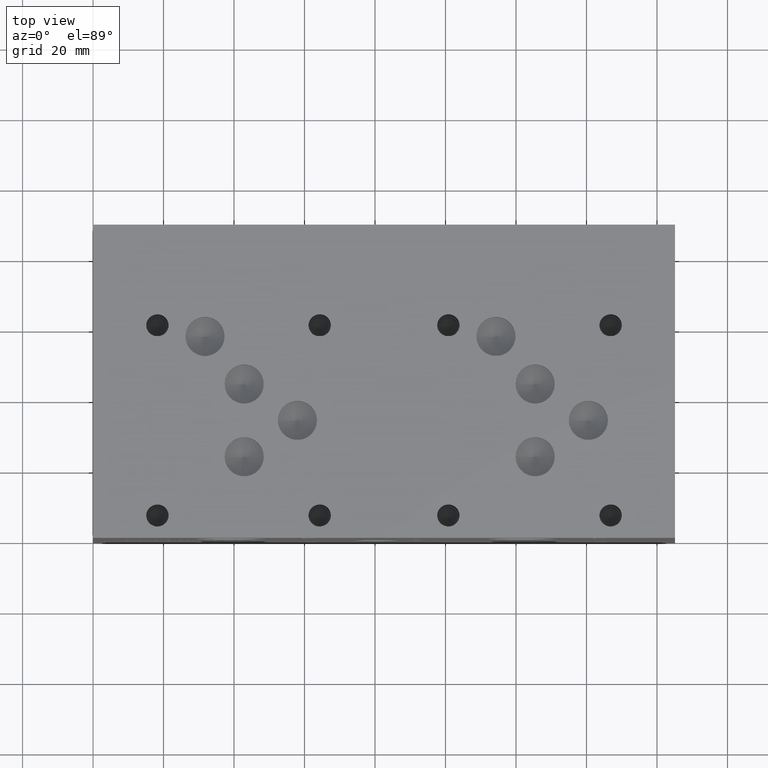
[diagram: clean part render]
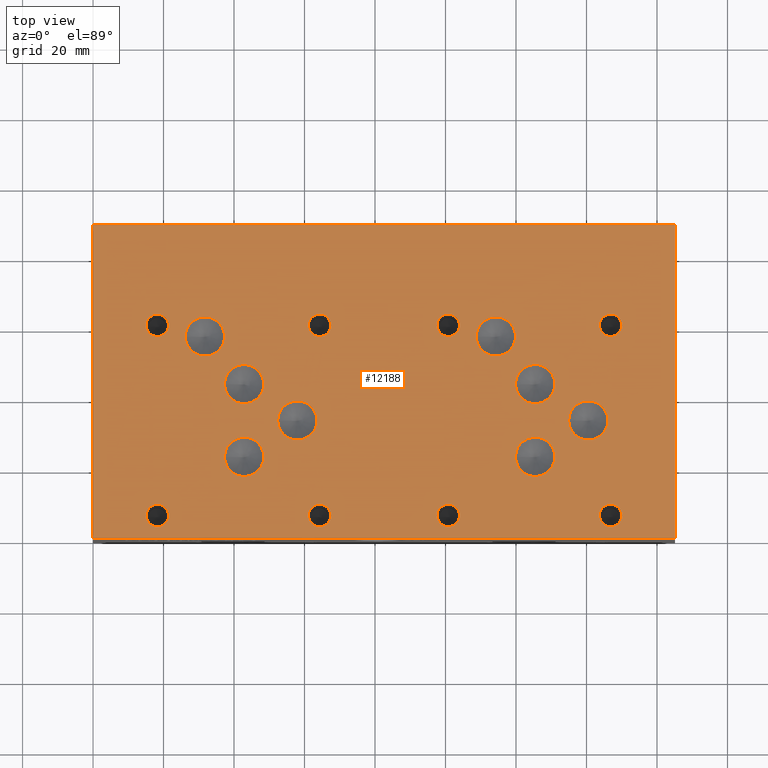
[diagram: same view with one face highlighted and labeled with its STEP entity id]
A machine part, top view. The second image highlights one B-rep face of the part: STEP entity #12188.
In plain terms, the highlighted planar face has unit normal (0, 0, 1).
Its self-contained STEP definition (entity closure, byte-faithful):
#223=CIRCLE('',#12721,5.55625);
#224=CIRCLE('',#12722,5.55625);
#227=CIRCLE('',#12727,5.5626);
#228=CIRCLE('',#12728,5.5626);
#231=CIRCLE('',#12733,5.5626);
#232=CIRCLE('',#12734,5.5626);
#235=CIRCLE('',#12739,5.5626);
#236=CIRCLE('',#12740,5.5626);
#239=CIRCLE('',#12745,5.5626);
#240=CIRCLE('',#12746,5.5626);
#243=CIRCLE('',#12751,5.5626);
#244=CIRCLE('',#12752,5.5626);
#247=CIRCLE('',#12757,5.5626);
#248=CIRCLE('',#12758,5.5626);
#251=CIRCLE('',#12763,5.5626);
#252=CIRCLE('',#12764,5.5626);
#258=CIRCLE('',#12773,3.175);
#259=CIRCLE('',#12774,3.175);
#265=CIRCLE('',#12784,3.175);
#266=CIRCLE('',#12785,3.175);
#272=CIRCLE('',#12795,3.175);
#273=CIRCLE('',#12796,3.175);
#279=CIRCLE('',#12806,3.175);
#280=CIRCLE('',#12807,3.175);
#286=CIRCLE('',#12817,3.175);
#287=CIRCLE('',#12818,3.175);
#293=CIRCLE('',#12828,3.175);
#294=CIRCLE('',#12829,3.175);
#300=CIRCLE('',#12839,3.175);
#301=CIRCLE('',#12840,3.175);
#307=CIRCLE('',#12850,3.175);
#308=CIRCLE('',#12851,3.175);
#393=FACE_BOUND('',#2257,.T.);
#394=FACE_BOUND('',#2258,.T.);
#395=FACE_BOUND('',#2259,.T.);
#396=FACE_BOUND('',#2260,.T.);
#397=FACE_BOUND('',#2261,.T.);
#398=FACE_BOUND('',#2262,.T.);
#399=FACE_BOUND('',#2263,.T.);
#400=FACE_BOUND('',#2264,.T.);
#401=FACE_BOUND('',#2265,.T.);
#402=FACE_BOUND('',#2266,.T.);
#403=FACE_BOUND('',#2267,.T.);
#404=FACE_BOUND('',#2268,.T.);
#405=FACE_BOUND('',#2269,.T.);
#406=FACE_BOUND('',#2270,.T.);
#407=FACE_BOUND('',#2271,.T.);
#408=FACE_BOUND('',#2272,.T.);
#1549=FACE_OUTER_BOUND('',#2256,.T.);
#2256=EDGE_LOOP('',(#10679,#10680,#10681,#10682));
#2257=EDGE_LOOP('',(#10683,#10684));
#2258=EDGE_LOOP('',(#10685,#10686));
#2259=EDGE_LOOP('',(#10687,#10688));
#2260=EDGE_LOOP('',(#10689,#10690));
#2261=EDGE_LOOP('',(#10691,#10692));
#2262=EDGE_LOOP('',(#10693,#10694));
#2263=EDGE_LOOP('',(#10695,#10696));
#2264=EDGE_LOOP('',(#10697,#10698));
#2265=EDGE_LOOP('',(#10699,#10700));
#2266=EDGE_LOOP('',(#10701,#10702));
#2267=EDGE_LOOP('',(#10703,#10704));
#2268=EDGE_LOOP('',(#10705,#10706));
#2269=EDGE_LOOP('',(#10707,#10708));
#2270=EDGE_LOOP('',(#10709,#10710));
#2271=EDGE_LOOP('',(#10711,#10712));
#2272=EDGE_LOOP('',(#10713,#10714));
#2590=LINE('',#17764,#3717);
#3159=LINE('',#19725,#4286);
#3219=LINE('',#19998,#4346);
#3400=LINE('',#21001,#4527);
#3717=VECTOR('',#13339,10.);
#4286=VECTOR('',#14320,10.);
#4346=VECTOR('',#14434,10.);
#4527=VECTOR('',#15289,10.);
#4882=VERTEX_POINT('',#17761);
#4883=VERTEX_POINT('',#17763);
#5341=VERTEX_POINT('',#19724);
#5399=VERTEX_POINT('',#19996);
#5584=VERTEX_POINT('',#20726);
#5585=VERTEX_POINT('',#20727);
#5589=VERTEX_POINT('',#20739);
#5590=VERTEX_POINT('',#20740);
#5594=VERTEX_POINT('',#20752);
#5595=VERTEX_POINT('',#20753);
#5599=VERTEX_POINT('',#20765);
#5600=VERTEX_POINT('',#20766);
#5604=VERTEX_POINT('',#20778);
#5605=VERTEX_POINT('',#20779);
#5609=VERTEX_POINT('',#20791);
#5610=VERTEX_POINT('',#20792);
#5614=VERTEX_POINT('',#20804);
#5615=VERTEX_POINT('',#20805);
#5619=VERTEX_POINT('',#20817);
#5620=VERTEX_POINT('',#20818);
#5627=VERTEX_POINT('',#20837);
#5628=VERTEX_POINT('',#20838);
#5635=VERTEX_POINT('',#20859);
#5636=VERTEX_POINT('',#20860);
#5643=VERTEX_POINT('',#20881);
#5644=VERTEX_POINT('',#20882);
#5651=VERTEX_POINT('',#20903);
#5652=VERTEX_POINT('',#20904);
#5659=VERTEX_POINT('',#20925);
#5660=VERTEX_POINT('',#20926);
#5667=VERTEX_POINT('',#20947);
#5668=VERTEX_POINT('',#20948);
#5675=VERTEX_POINT('',#20969);
#5676=VERTEX_POINT('',#20970);
#5683=VERTEX_POINT('',#20991);
#5684=VERTEX_POINT('',#20992);
#6215=EDGE_CURVE('',#4883,#4882,#2590,.T.);
#6888=EDGE_CURVE('',#5341,#4883,#3159,.T.);
#6972=EDGE_CURVE('',#4882,#5399,#3219,.T.);
#7236=EDGE_CURVE('',#5584,#5585,#223,.T.);
#7237=EDGE_CURVE('',#5585,#5584,#224,.T.);
#7242=EDGE_CURVE('',#5589,#5590,#227,.T.);
#7243=EDGE_CURVE('',#5590,#5589,#228,.T.);
#7248=EDGE_CURVE('',#5594,#5595,#231,.T.);
#7249=EDGE_CURVE('',#5595,#5594,#232,.T.);
#7254=EDGE_CURVE('',#5599,#5600,#235,.T.);
#7255=EDGE_CURVE('',#5600,#5599,#236,.T.);
#7260=EDGE_CURVE('',#5604,#5605,#239,.T.);
#7261=EDGE_CURVE('',#5605,#5604,#240,.T.);
#7266=EDGE_CURVE('',#5609,#5610,#243,.T.);
#7267=EDGE_CURVE('',#5610,#5609,#244,.T.);
#7272=EDGE_CURVE('',#5614,#5615,#247,.T.);
#7273=EDGE_CURVE('',#5615,#5614,#248,.T.);
#7278=EDGE_CURVE('',#5619,#5620,#251,.T.);
#7279=EDGE_CURVE('',#5620,#5619,#252,.T.);
#7287=EDGE_CURVE('',#5627,#5628,#258,.T.);
#7288=EDGE_CURVE('',#5628,#5627,#259,.T.);
#7297=EDGE_CURVE('',#5635,#5636,#265,.T.);
#7298=EDGE_CURVE('',#5636,#5635,#266,.T.);
#7307=EDGE_CURVE('',#5643,#5644,#272,.T.);
#7308=EDGE_CURVE('',#5644,#5643,#273,.T.);
#7317=EDGE_CURVE('',#5651,#5652,#279,.T.);
#7318=EDGE_CURVE('',#5652,#5651,#280,.T.);
#7327=EDGE_CURVE('',#5659,#5660,#286,.T.);
#7328=EDGE_CURVE('',#5660,#5659,#287,.T.);
#7337=EDGE_CURVE('',#5667,#5668,#293,.T.);
#7338=EDGE_CURVE('',#5668,#5667,#294,.T.);
#7347=EDGE_CURVE('',#5675,#5676,#300,.T.);
#7348=EDGE_CURVE('',#5676,#5675,#301,.T.);
#7357=EDGE_CURVE('',#5683,#5684,#307,.T.);
#7358=EDGE_CURVE('',#5684,#5683,#308,.T.);
#7362=EDGE_CURVE('',#5399,#5341,#3400,.T.);
#10679=ORIENTED_EDGE('',*,*,#6215,.T.);
#10680=ORIENTED_EDGE('',*,*,#6972,.T.);
#10681=ORIENTED_EDGE('',*,*,#7362,.T.);
#10682=ORIENTED_EDGE('',*,*,#6888,.T.);
#10683=ORIENTED_EDGE('',*,*,#7236,.T.);
#10684=ORIENTED_EDGE('',*,*,#7237,.T.);
#10685=ORIENTED_EDGE('',*,*,#7242,.T.);
#10686=ORIENTED_EDGE('',*,*,#7243,.T.);
#10687=ORIENTED_EDGE('',*,*,#7248,.T.);
#10688=ORIENTED_EDGE('',*,*,#7249,.T.);
#10689=ORIENTED_EDGE('',*,*,#7254,.T.);
#10690=ORIENTED_EDGE('',*,*,#7255,.T.);
#10691=ORIENTED_EDGE('',*,*,#7260,.T.);
#10692=ORIENTED_EDGE('',*,*,#7261,.T.);
#10693=ORIENTED_EDGE('',*,*,#7266,.T.);
#10694=ORIENTED_EDGE('',*,*,#7267,.T.);
#10695=ORIENTED_EDGE('',*,*,#7272,.T.);
#10696=ORIENTED_EDGE('',*,*,#7273,.T.);
#10697=ORIENTED_EDGE('',*,*,#7278,.T.);
#10698=ORIENTED_EDGE('',*,*,#7279,.T.);
#10699=ORIENTED_EDGE('',*,*,#7287,.T.);
#10700=ORIENTED_EDGE('',*,*,#7288,.T.);
#10701=ORIENTED_EDGE('',*,*,#7297,.T.);
#10702=ORIENTED_EDGE('',*,*,#7298,.T.);
#10703=ORIENTED_EDGE('',*,*,#7307,.T.);
#10704=ORIENTED_EDGE('',*,*,#7308,.T.);
#10705=ORIENTED_EDGE('',*,*,#7317,.T.);
#10706=ORIENTED_EDGE('',*,*,#7318,.T.);
#10707=ORIENTED_EDGE('',*,*,#7327,.T.);
#10708=ORIENTED_EDGE('',*,*,#7328,.T.);
#10709=ORIENTED_EDGE('',*,*,#7337,.T.);
#10710=ORIENTED_EDGE('',*,*,#7338,.T.);
#10711=ORIENTED_EDGE('',*,*,#7347,.T.);
#10712=ORIENTED_EDGE('',*,*,#7348,.T.);
#10713=ORIENTED_EDGE('',*,*,#7357,.T.);
#10714=ORIENTED_EDGE('',*,*,#7358,.T.);
#11077=PLANE('',#12857);
#12188=ADVANCED_FACE('',(#1549,#393,#394,#395,#396,#397,#398,#399,#400,
#401,#402,#403,#404,#405,#406,#407,#408),#11077,.T.);
#12721=AXIS2_PLACEMENT_3D('',#20728,#14981,#14982);
#12722=AXIS2_PLACEMENT_3D('',#20729,#14983,#14984);
#12727=AXIS2_PLACEMENT_3D('',#20741,#14995,#14996);
#12728=AXIS2_PLACEMENT_3D('',#20742,#14997,#14998);
#12733=AXIS2_PLACEMENT_3D('',#20754,#15009,#15010);
#12734=AXIS2_PLACEMENT_3D('',#20755,#15011,#15012);
#12739=AXIS2_PLACEMENT_3D('',#20767,#15023,#15024);
#12740=AXIS2_PLACEMENT_3D('',#20768,#15025,#15026);
#12745=AXIS2_PLACEMENT_3D('',#20780,#15037,#15038);
#12746=AXIS2_PLACEMENT_3D('',#20781,#15039,#15040);
#12751=AXIS2_PLACEMENT_3D('',#20793,#15051,#15052);
#12752=AXIS2_PLACEMENT_3D('',#20794,#15053,#15054);
#12757=AXIS2_PLACEMENT_3D('',#20806,#15065,#15066);
#12758=AXIS2_PLACEMENT_3D('',#20807,#15067,#15068);
#12763=AXIS2_PLACEMENT_3D('',#20819,#15079,#15080);
#12764=AXIS2_PLACEMENT_3D('',#20820,#15081,#15082);
#12773=AXIS2_PLACEMENT_3D('',#20839,#15101,#15102);
#12774=AXIS2_PLACEMENT_3D('',#20840,#15103,#15104);
#12784=AXIS2_PLACEMENT_3D('',#20861,#15126,#15127);
#12785=AXIS2_PLACEMENT_3D('',#20862,#15128,#15129);
#12795=AXIS2_PLACEMENT_3D('',#20883,#15151,#15152);
#12796=AXIS2_PLACEMENT_3D('',#20884,#15153,#15154);
#12806=AXIS2_PLACEMENT_3D('',#20905,#15176,#15177);
#12807=AXIS2_PLACEMENT_3D('',#20906,#15178,#15179);
#12817=AXIS2_PLACEMENT_3D('',#20927,#15201,#15202);
#12818=AXIS2_PLACEMENT_3D('',#20928,#15203,#15204);
#12828=AXIS2_PLACEMENT_3D('',#20949,#15226,#15227);
#12829=AXIS2_PLACEMENT_3D('',#20950,#15228,#15229);
#12839=AXIS2_PLACEMENT_3D('',#20971,#15251,#15252);
#12840=AXIS2_PLACEMENT_3D('',#20972,#15253,#15254);
#12850=AXIS2_PLACEMENT_3D('',#20993,#15276,#15277);
#12851=AXIS2_PLACEMENT_3D('',#20994,#15278,#15279);
#12857=AXIS2_PLACEMENT_3D('',#21004,#15294,#15295);
#13339=DIRECTION('',(1.,0.,0.));
#14320=DIRECTION('',(0.,-1.,0.));
#14434=DIRECTION('',(0.,1.,0.));
#14981=DIRECTION('center_axis',(0.,0.,-1.));
#14982=DIRECTION('ref_axis',(1.,0.,0.));
#14983=DIRECTION('center_axis',(0.,0.,-1.));
#14984=DIRECTION('ref_axis',(1.,0.,0.));
#14995=DIRECTION('center_axis',(0.,0.,-1.));
#14996=DIRECTION('ref_axis',(1.,0.,0.));
#14997=DIRECTION('center_axis',(0.,0.,-1.));
#14998=DIRECTION('ref_axis',(1.,0.,0.));
#15009=DIRECTION('center_axis',(0.,0.,-1.));
#15010=DIRECTION('ref_axis',(1.,0.,0.));
#15011=DIRECTION('center_axis',(0.,0.,-1.));
#15012=DIRECTION('ref_axis',(1.,0.,0.));
#15023=DIRECTION('center_axis',(0.,0.,-1.));
#15024=DIRECTION('ref_axis',(1.,0.,0.));
#15025=DIRECTION('center_axis',(0.,0.,-1.));
#15026=DIRECTION('ref_axis',(1.,0.,0.));
#15037=DIRECTION('center_axis',(0.,0.,-1.));
#15038=DIRECTION('ref_axis',(1.,0.,0.));
#15039=DIRECTION('center_axis',(0.,0.,-1.));
#15040=DIRECTION('ref_axis',(1.,0.,0.));
#15051=DIRECTION('center_axis',(0.,0.,-1.));
#15052=DIRECTION('ref_axis',(1.,0.,0.));
#15053=DIRECTION('center_axis',(0.,0.,-1.));
#15054=DIRECTION('ref_axis',(1.,0.,0.));
#15065=DIRECTION('center_axis',(0.,0.,-1.));
#15066=DIRECTION('ref_axis',(1.,0.,0.));
#15067=DIRECTION('center_axis',(0.,0.,-1.));
#15068=DIRECTION('ref_axis',(1.,0.,0.));
#15079=DIRECTION('center_axis',(0.,0.,-1.));
#15080=DIRECTION('ref_axis',(1.,0.,0.));
#15081=DIRECTION('center_axis',(0.,0.,-1.));
#15082=DIRECTION('ref_axis',(1.,0.,0.));
#15101=DIRECTION('center_axis',(0.,0.,-1.));
#15102=DIRECTION('ref_axis',(1.,0.,0.));
#15103=DIRECTION('center_axis',(0.,0.,-1.));
#15104=DIRECTION('ref_axis',(1.,0.,0.));
#15126=DIRECTION('center_axis',(0.,0.,-1.));
#15127=DIRECTION('ref_axis',(1.,0.,0.));
#15128=DIRECTION('center_axis',(0.,0.,-1.));
#15129=DIRECTION('ref_axis',(1.,0.,0.));
#15151=DIRECTION('center_axis',(0.,0.,-1.));
#15152=DIRECTION('ref_axis',(1.,0.,0.));
#15153=DIRECTION('center_axis',(0.,0.,-1.));
#15154=DIRECTION('ref_axis',(1.,0.,0.));
#15176=DIRECTION('center_axis',(0.,0.,-1.));
#15177=DIRECTION('ref_axis',(1.,0.,0.));
#15178=DIRECTION('center_axis',(0.,0.,-1.));
#15179=DIRECTION('ref_axis',(1.,0.,0.));
#15201=DIRECTION('center_axis',(0.,0.,-1.));
#15202=DIRECTION('ref_axis',(1.,0.,0.));
#15203=DIRECTION('center_axis',(0.,0.,-1.));
#15204=DIRECTION('ref_axis',(1.,0.,0.));
#15226=DIRECTION('center_axis',(0.,0.,-1.));
#15227=DIRECTION('ref_axis',(1.,0.,0.));
#15228=DIRECTION('center_axis',(0.,0.,-1.));
#15229=DIRECTION('ref_axis',(1.,0.,0.));
#15251=DIRECTION('center_axis',(0.,0.,-1.));
#15252=DIRECTION('ref_axis',(1.,0.,0.));
#15253=DIRECTION('center_axis',(0.,0.,-1.));
#15254=DIRECTION('ref_axis',(1.,0.,0.));
#15276=DIRECTION('center_axis',(0.,0.,-1.));
#15277=DIRECTION('ref_axis',(1.,0.,0.));
#15278=DIRECTION('center_axis',(0.,0.,-1.));
#15279=DIRECTION('ref_axis',(1.,0.,0.));
#15289=DIRECTION('',(-1.,0.,0.));
#15294=DIRECTION('center_axis',(0.,0.,1.));
#15295=DIRECTION('ref_axis',(1.,0.,0.));
#17761=CARTESIAN_POINT('',(165.1,0.,88.9));
#17763=CARTESIAN_POINT('',(0.,0.,88.9));
#17764=CARTESIAN_POINT('',(0.,0.,88.9));
#19724=CARTESIAN_POINT('',(0.,88.9,88.9));
#19725=CARTESIAN_POINT('',(0.,88.9,88.9));
#19996=CARTESIAN_POINT('',(165.1,88.9,88.9));
#19998=CARTESIAN_POINT('',(165.1,0.,88.9));
#20726=CARTESIAN_POINT('',(48.41875,43.64228,88.9));
#20727=CARTESIAN_POINT('',(37.30625,43.64228,88.9));
#20728=CARTESIAN_POINT('Origin',(42.8625,43.64228,88.9));
#20729=CARTESIAN_POINT('Origin',(42.8625,43.64228,88.9));
#20739=CARTESIAN_POINT('',(130.9878,43.6499,88.9));
#20740=CARTESIAN_POINT('',(119.8626,43.6499,88.9));
#20741=CARTESIAN_POINT('Origin',(125.4252,43.6499,88.9));
#20742=CARTESIAN_POINT('Origin',(125.4252,43.6499,88.9));
#20752=CARTESIAN_POINT('',(146.0754,33.3375,88.9));
#20753=CARTESIAN_POINT('',(134.9502,33.3375,88.9));
#20754=CARTESIAN_POINT('Origin',(140.5128,33.3375,88.9));
#20755=CARTESIAN_POINT('Origin',(140.5128,33.3375,88.9));
#20765=CARTESIAN_POINT('',(37.3126,57.15,88.9));
#20766=CARTESIAN_POINT('',(26.1874,57.15,88.9));
#20767=CARTESIAN_POINT('Origin',(31.75,57.15,88.9));
#20768=CARTESIAN_POINT('Origin',(31.75,57.15,88.9));
#20778=CARTESIAN_POINT('',(63.5254,33.3248,88.9));
#20779=CARTESIAN_POINT('',(52.4002,33.3248,88.9));
#20780=CARTESIAN_POINT('Origin',(57.9628,33.3248,88.9));
#20781=CARTESIAN_POINT('Origin',(57.9628,33.3248,88.9));
#20791=CARTESIAN_POINT('',(48.43018,23.00732,88.9));
#20792=CARTESIAN_POINT('',(37.30498,23.00732,88.9));
#20793=CARTESIAN_POINT('Origin',(42.86758,23.00732,88.9));
#20794=CARTESIAN_POINT('Origin',(42.86758,23.00732,88.9));
#20804=CARTESIAN_POINT('',(119.8626,57.1627,88.9));
#20805=CARTESIAN_POINT('',(108.7374,57.1627,88.9));
#20806=CARTESIAN_POINT('Origin',(114.3,57.1627,88.9));
#20807=CARTESIAN_POINT('Origin',(114.3,57.1627,88.9));
#20817=CARTESIAN_POINT('',(130.9878,23.0251,88.9));
#20818=CARTESIAN_POINT('',(119.8626,23.0251,88.9));
#20819=CARTESIAN_POINT('Origin',(125.4252,23.0251,88.9));
#20820=CARTESIAN_POINT('Origin',(125.4252,23.0251,88.9));
#20837=CARTESIAN_POINT('',(150.0124,6.3627,88.9));
#20838=CARTESIAN_POINT('',(143.6624,6.3627,88.9));
#20839=CARTESIAN_POINT('Origin',(146.8374,6.3627,88.9));
#20840=CARTESIAN_POINT('Origin',(146.8374,6.3627,88.9));
#20859=CARTESIAN_POINT('',(103.9622,60.3377,88.9));
#20860=CARTESIAN_POINT('',(97.6122,60.3377,88.9));
#20861=CARTESIAN_POINT('Origin',(100.7872,60.3377,88.9));
#20862=CARTESIAN_POINT('Origin',(100.7872,60.3377,88.9));
#20881=CARTESIAN_POINT('',(67.4624,6.3627,88.9));
#20882=CARTESIAN_POINT('',(61.1124,6.3627,88.9));
#20883=CARTESIAN_POINT('Origin',(64.2874,6.3627,88.9));
#20884=CARTESIAN_POINT('Origin',(64.2874,6.3627,88.9));
#20903=CARTESIAN_POINT('',(21.4122,60.325,88.9));
#20904=CARTESIAN_POINT('',(15.0622,60.325,88.9));
#20905=CARTESIAN_POINT('Origin',(18.2372,60.325,88.9));
#20906=CARTESIAN_POINT('Origin',(18.2372,60.325,88.9));
#20925=CARTESIAN_POINT('',(67.4624,60.325,88.9));
#20926=CARTESIAN_POINT('',(61.1124,60.325,88.9));
#20927=CARTESIAN_POINT('Origin',(64.2874,60.325,88.9));
#20928=CARTESIAN_POINT('Origin',(64.2874,60.325,88.9));
#20947=CARTESIAN_POINT('',(21.4122,6.35,88.9));
#20948=CARTESIAN_POINT('',(15.0622,6.35,88.9));
#20949=CARTESIAN_POINT('Origin',(18.2372,6.35,88.9));
#20950=CARTESIAN_POINT('Origin',(18.2372,6.35,88.9));
#20969=CARTESIAN_POINT('',(150.0124,60.3377,88.9));
#20970=CARTESIAN_POINT('',(143.6624,60.3377,88.9));
#20971=CARTESIAN_POINT('Origin',(146.8374,60.3377,88.9));
#20972=CARTESIAN_POINT('Origin',(146.8374,60.3377,88.9));
#20991=CARTESIAN_POINT('',(103.9622,6.3627,88.9));
#20992=CARTESIAN_POINT('',(97.6122,6.3627,88.9));
#20993=CARTESIAN_POINT('Origin',(100.7872,6.3627,88.9));
#20994=CARTESIAN_POINT('Origin',(100.7872,6.3627,88.9));
#21001=CARTESIAN_POINT('',(165.1,88.9,88.9));
#21004=CARTESIAN_POINT('Origin',(82.55,44.45,88.9));